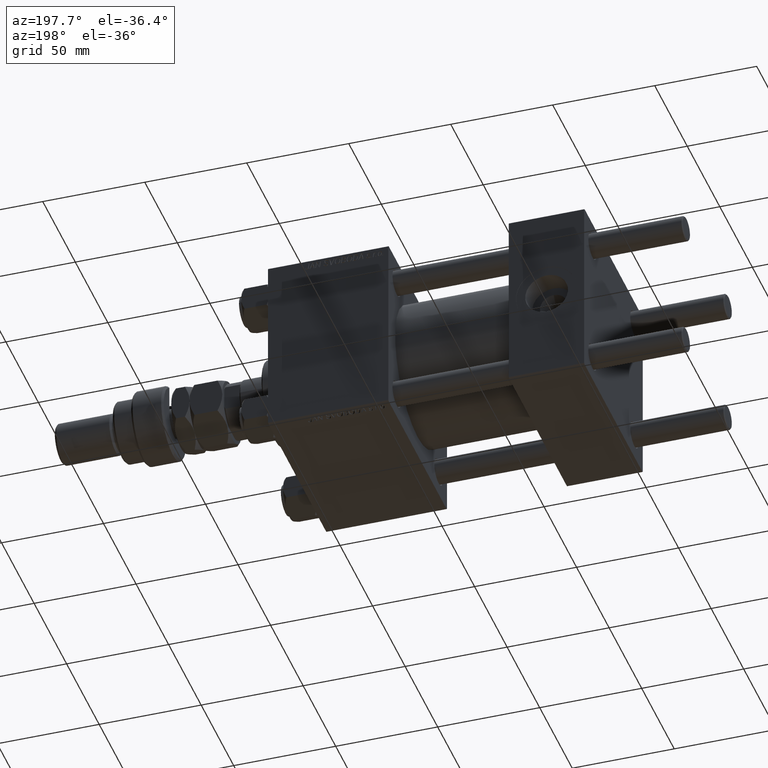
[diagram: clean part render]
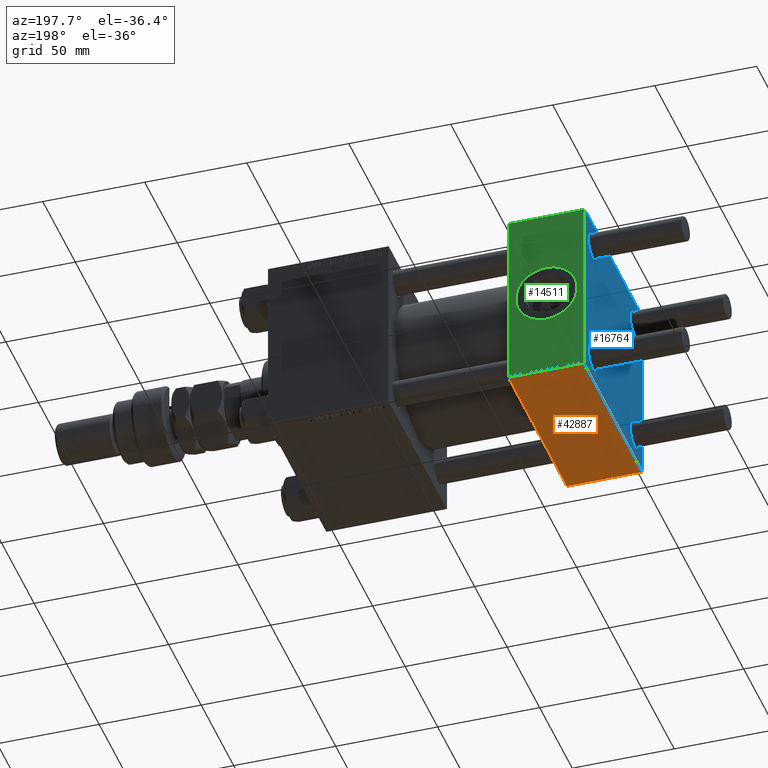
[diagram: same view with three faces highlighted in distinct colors, each labeled with its STEP entity id]
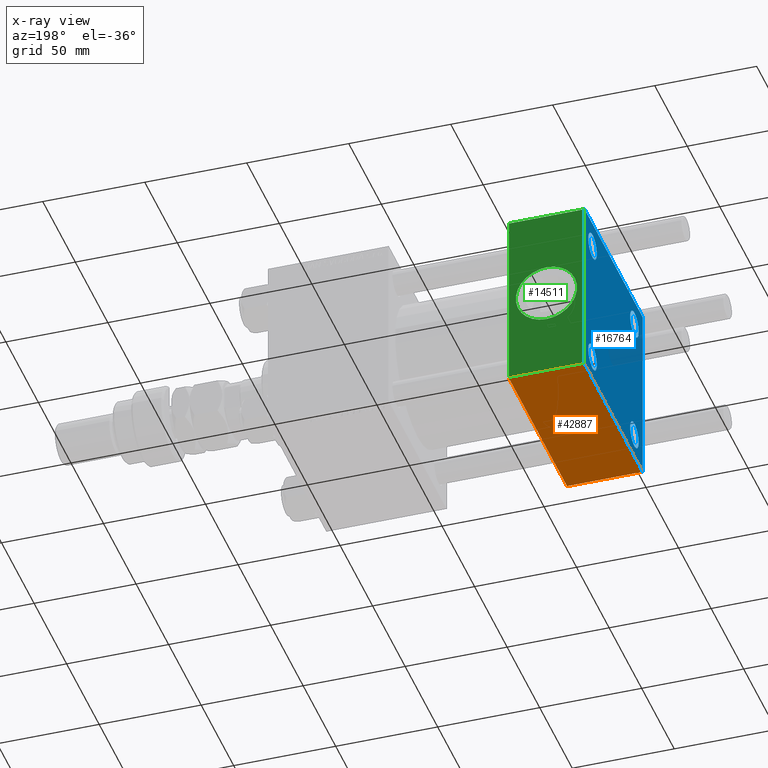
[diagram: x-ray of the same camera — body ghosted, the three highlighted faces saturated]
A machine part, auxiliary view with three faces highlighted in distinct colors.
The next image is the same camera in x-ray (body ghosted, the three faces saturated) — at least one of them is partly hidden behind the body in this view.
Their STEP definitions:

[orange] entity #42887 — the highlighted planar face has unit normal (0, 0, -1).
#60 = DIRECTION ( 'NONE',  ( -1.000000000000000000, 0.000000000000000000, 0.000000000000000000 ) ) ;
#432 = DIRECTION ( 'NONE',  ( 0.000000000000000000, -1.000000000000000000, -1.541976423090495633E-16 ) ) ;
#692 = CARTESIAN_POINT ( 'NONE',  ( 37.00000000000000000, 44.49999999999998579, -44.99999999999998579 ) ) ;
#957 = EDGE_CURVE ( 'NONE', #46983, #13670, #11612, .T. ) ;
#1034 = EDGE_CURVE ( 'NONE', #46983, #3476, #29655, .T. ) ;
#2750 = AXIS2_PLACEMENT_3D ( 'NONE', #14525, #30742, #43546 ) ;
#3476 = VERTEX_POINT ( 'NONE', #41551 ) ;
#3679 = EDGE_CURVE ( 'NONE', #13670, #22737, #17442, .T. ) ;
#7858 = ORIENTED_EDGE ( 'NONE', *, *, #3679, .T. ) ;
#11342 = PLANE ( 'NONE',  #2750 ) ;
#11612 = LINE ( 'NONE', #44095, #48450 ) ;
#12770 = VECTOR ( 'NONE', #21435, 1000.000000000000000 ) ;
#13670 = VERTEX_POINT ( 'NONE', #692 ) ;
#14525 = CARTESIAN_POINT ( 'NONE',  ( 37.00000000000000000, 44.99999999999998579, -44.99999999999998579 ) ) ;
#17442 = LINE ( 'NONE', #24904, #12770 ) ;
#17761 = VECTOR ( 'NONE', #432, 1000.000000000000000 ) ;
#21435 = DIRECTION ( 'NONE',  ( 0.000000000000000000, -1.000000000000000000, -1.541976423090495633E-16 ) ) ;
#21652 = EDGE_LOOP ( 'NONE', ( #40410, #36610, #7858, #31516 ) ) ;
#22737 = VERTEX_POINT ( 'NONE', #32770 ) ;
#24904 = CARTESIAN_POINT ( 'NONE',  ( 37.00000000000000000, 44.99999999999998579, -44.99999999999998579 ) ) ;
#27837 = DIRECTION ( 'NONE',  ( 1.000000000000000000, 0.000000000000000000, 0.000000000000000000 ) ) ;
#29655 = LINE ( 'NONE', #32605, #17761 ) ;
#30742 = DIRECTION ( 'NONE',  ( 0.000000000000000000, 1.541976423090495880E-16, -1.000000000000000000 ) ) ;
#31516 = ORIENTED_EDGE ( 'NONE', *, *, #47853, .T. ) ;
#32493 = CARTESIAN_POINT ( 'NONE',  ( 0.000000000000000000, -44.49999999999998579, -45.00000000000000000 ) ) ;
#32605 = CARTESIAN_POINT ( 'NONE',  ( 0.000000000000000000, 44.99999999999998579, -44.99999999999998579 ) ) ;
#32770 = CARTESIAN_POINT ( 'NONE',  ( 37.00000000000000000, -44.49999999999995737, -45.00000000000000000 ) ) ;
#34737 = FACE_OUTER_BOUND ( 'NONE', #21652, .T. ) ;
#35311 = CARTESIAN_POINT ( 'NONE',  ( 0.000000000000000000, 44.49999999999998579, -44.99999999999998579 ) ) ;
#36474 = LINE ( 'NONE', #32493, #47892 ) ;
#36610 = ORIENTED_EDGE ( 'NONE', *, *, #957, .T. ) ;
#40410 = ORIENTED_EDGE ( 'NONE', *, *, #1034, .F. ) ;
#41551 = CARTESIAN_POINT ( 'NONE',  ( 0.000000000000000000, -44.49999999999995737, -45.00000000000000000 ) ) ;
#42887 = ADVANCED_FACE ( 'NONE', ( #34737 ), #11342, .T. ) ;
#43546 = DIRECTION ( 'NONE',  ( 0.000000000000000000, 1.000000000000000000, 1.541976423090495880E-16 ) ) ;
#44095 = CARTESIAN_POINT ( 'NONE',  ( 37.00000000000000000, 44.49999999999998579, -44.99999999999998579 ) ) ;
#46983 = VERTEX_POINT ( 'NONE', #35311 ) ;
#47853 = EDGE_CURVE ( 'NONE', #22737, #3476, #36474, .T. ) ;
#47892 = VECTOR ( 'NONE', #60, 1000.000000000000000 ) ;
#48450 = VECTOR ( 'NONE', #27837, 1000.000000000000000 ) ;

[blue] entity #16764 — the highlighted planar face has unit normal (-1, 0, 0).
#432 = DIRECTION ( 'NONE',  ( 0.000000000000000000, -1.000000000000000000, -1.541976423090495633E-16 ) ) ;
#454 = PLANE ( 'NONE',  #17353 ) ;
#804 = AXIS2_PLACEMENT_3D ( 'NONE', #2454, #30896, #50644 ) ;
#825 = CARTESIAN_POINT ( 'NONE',  ( 0.000000000000000000, 32.14999999999999147, -38.64999999999998437 ) ) ;
#987 = EDGE_CURVE ( 'NONE', #47231, #26794, #3127, .T. ) ;
#1034 = EDGE_CURVE ( 'NONE', #46983, #3476, #29655, .T. ) ;
#1166 = VERTEX_POINT ( 'NONE', #22190 ) ;
#1425 = CARTESIAN_POINT ( 'NONE',  ( 0.000000000000000000, 32.14999999999999147, 25.65000000000002700 ) ) ;
#1485 = FACE_BOUND ( 'NONE', #13152, .T. ) ;
#1525 = DIRECTION ( 'NONE',  ( -0.000000000000000000, 0.7071067811865425767, 0.7071067811865524577 ) ) ;
#1583 = CARTESIAN_POINT ( 'NONE',  ( 0.000000000000000000, -44.74999999999998579, -44.74999999999998579 ) ) ;
#1832 = ORIENTED_EDGE ( 'NONE', *, *, #32820, .T. ) ;
#2284 = CARTESIAN_POINT ( 'NONE',  ( 0.000000000000000000, -45.00000000000000711, 44.49999999999997158 ) ) ;
#2454 = CARTESIAN_POINT ( 'NONE',  ( 0.000000000000000000, -32.14999999999997726, 32.15000000000001279 ) ) ;
#2475 = VERTEX_POINT ( 'NONE', #3407 ) ;
#2522 = AXIS2_PLACEMENT_3D ( 'NONE', #33769, #12511, #28733 ) ;
#2955 = VERTEX_POINT ( 'NONE', #1425 ) ;
#3127 = LINE ( 'NONE', #20107, #13517 ) ;
#3407 = CARTESIAN_POINT ( 'NONE',  ( 0.000000000000000000, 44.99999999999998579, 44.50000000000001421 ) ) ;
#3476 = VERTEX_POINT ( 'NONE', #41551 ) ;
#3661 = DIRECTION ( 'NONE',  ( 0.000000000000000000, 0.000000000000000000, 1.000000000000000000 ) ) ;
#3710 = ORIENTED_EDGE ( 'NONE', *, *, #38980, .T. ) ;
#3914 = CARTESIAN_POINT ( 'NONE',  ( 0.000000000000000000, 32.14999999999999147, -32.15000000000000568 ) ) ;
#4213 = CIRCLE ( 'NONE', #804, 6.500000000000019540 ) ;
#4431 = DIRECTION ( 'NONE',  ( -0.000000000000000000, 0.000000000000000000, 1.000000000000000000 ) ) ;
#5439 = EDGE_CURVE ( 'NONE', #38292, #43721, #51312, .T. ) ;
#5612 = VECTOR ( 'NONE', #21594, 1000.000000000000000 ) ;
#6107 = DIRECTION ( 'NONE',  ( 0.000000000000000000, 0.7071067811865474617, -0.7071067811865474617 ) ) ;
#6501 = CIRCLE ( 'NONE', #34506, 6.499999999999977796 ) ;
#6906 = CARTESIAN_POINT ( 'NONE',  ( 0.000000000000000000, 44.74999999999999289, 44.74999999999999289 ) ) ;
#7638 = DIRECTION ( 'NONE',  ( 1.000000000000000000, -0.000000000000000000, 0.000000000000000000 ) ) ;
#8020 = AXIS2_PLACEMENT_3D ( 'NONE', #3914, #7638, #3661 ) ;
#8643 = CARTESIAN_POINT ( 'NONE',  ( 0.000000000000000000, 32.14999999999999147, 32.15000000000000568 ) ) ;
#9438 = VECTOR ( 'NONE', #6107, 1000.000000000000114 ) ;
#10463 = DIRECTION ( 'NONE',  ( 1.000000000000000000, -0.000000000000000000, 0.000000000000000000 ) ) ;
#11298 = VERTEX_POINT ( 'NONE', #14794 ) ;
#11358 = CIRCLE ( 'NONE', #52185, 6.499999999999977796 ) ;
#11569 = CARTESIAN_POINT ( 'NONE',  ( 0.000000000000000000, -32.14999999999997726, -32.15000000000001279 ) ) ;
#11620 = VERTEX_POINT ( 'NONE', #22704 ) ;
#12511 = DIRECTION ( 'NONE',  ( 1.000000000000000000, -0.000000000000000000, 0.000000000000000000 ) ) ;
#12537 = ORIENTED_EDGE ( 'NONE', *, *, #40918, .T. ) ;
#12664 = DIRECTION ( 'NONE',  ( -1.000000000000000000, 0.000000000000000000, -0.000000000000000000 ) ) ;
#12775 = CARTESIAN_POINT ( 'NONE',  ( -0.000000000000000000, -44.75000000000029843, 44.74999999999967315 ) ) ;
#13152 = EDGE_LOOP ( 'NONE', ( #38247, #1832 ) ) ;
#13517 = VECTOR ( 'NONE', #32341, 1000.000000000000000 ) ;
#14039 = LINE ( 'NONE', #45737, #39709 ) ;
#14708 = DIRECTION ( 'NONE',  ( 0.000000000000000000, 0.000000000000000000, 1.000000000000000000 ) ) ;
#14794 = CARTESIAN_POINT ( 'NONE',  ( 0.000000000000000000, -32.14999999999997726, 25.64999999999999147 ) ) ;
#15015 = DIRECTION ( 'NONE',  ( 0.000000000000000000, 0.000000000000000000, 1.000000000000000000 ) ) ;
#16036 = EDGE_CURVE ( 'NONE', #32893, #52341, #21600, .T. ) ;
#16542 = CARTESIAN_POINT ( 'NONE',  ( 0.000000000000000000, -32.14999999999997726, 38.65000000000003411 ) ) ;
#16640 = EDGE_CURVE ( 'NONE', #42754, #40750, #28412, .T. ) ;
#16662 = VECTOR ( 'NONE', #1525, 1000.000000000000114 ) ;
#16764 = ADVANCED_FACE ( 'NONE', ( #1485, #41680, #17181, #29416, #41423 ), #454, .T. ) ;
#17181 = FACE_BOUND ( 'NONE', #43814, .T. ) ;
#17353 = AXIS2_PLACEMENT_3D ( 'NONE', #21429, #12664, #4431 ) ;
#17504 = DIRECTION ( 'NONE',  ( -0.000000000000000000, -0.7071067811865474617, -0.7071067811865474617 ) ) ;
#17761 = VECTOR ( 'NONE', #432, 1000.000000000000000 ) ;
#17785 = DIRECTION ( 'NONE',  ( 0.000000000000000000, -0.7071067811865474617, 0.7071067811865474617 ) ) ;
#18488 = VERTEX_POINT ( 'NONE', #16542 ) ;
#18866 = ORIENTED_EDGE ( 'NONE', *, *, #1034, .T. ) ;
#19424 = CIRCLE ( 'NONE', #30456, 6.499999999999977796 ) ;
#20063 = CARTESIAN_POINT ( 'NONE',  ( 0.000000000000000000, -32.14999999999997726, -32.15000000000001279 ) ) ;
#20107 = CARTESIAN_POINT ( 'NONE',  ( 0.000000000000000000, -45.00000000000000711, 45.00000000000000000 ) ) ;
#20117 = CARTESIAN_POINT ( 'NONE',  ( 0.000000000000000000, -32.14999999999997726, -25.65000000000003411 ) ) ;
#20303 = EDGE_LOOP ( 'NONE', ( #29440, #34013 ) ) ;
#20612 = EDGE_CURVE ( 'NONE', #2475, #1166, #38890, .T. ) ;
#21429 = CARTESIAN_POINT ( 'NONE',  ( 0.000000000000000000, 0.000000000000000000, 0.000000000000000000 ) ) ;
#21594 = DIRECTION ( 'NONE',  ( 0.000000000000000000, 0.000000000000000000, -1.000000000000000000 ) ) ;
#21600 = CIRCLE ( 'NONE', #34318, 6.499999999999977796 ) ;
#22190 = CARTESIAN_POINT ( 'NONE',  ( 0.000000000000000000, 44.99999999999998579, -44.49999999999995737 ) ) ;
#22704 = CARTESIAN_POINT ( 'NONE',  ( 0.000000000000000000, 32.14999999999999147, 38.64999999999999147 ) ) ;
#22946 = CARTESIAN_POINT ( 'NONE',  ( 0.000000000000000000, 32.14999999999999147, -32.15000000000000568 ) ) ;
#23715 = EDGE_CURVE ( 'NONE', #2955, #11620, #19424, .T. ) ;
#23845 = ORIENTED_EDGE ( 'NONE', *, *, #20612, .T. ) ;
#23899 = EDGE_LOOP ( 'NONE', ( #24386, #47338 ) ) ;
#24064 = ORIENTED_EDGE ( 'NONE', *, *, #27647, .T. ) ;
#24386 = ORIENTED_EDGE ( 'NONE', *, *, #35113, .T. ) ;
#26044 = EDGE_CURVE ( 'NONE', #11620, #2955, #6501, .T. ) ;
#26210 = EDGE_CURVE ( 'NONE', #47231, #43721, #49267, .T. ) ;
#26247 = DIRECTION ( 'NONE',  ( 0.000000000000000000, -1.000000000000000000, -1.541976423090495387E-16 ) ) ;
#26794 = VERTEX_POINT ( 'NONE', #43678 ) ;
#27647 = EDGE_CURVE ( 'NONE', #1166, #46983, #14039, .T. ) ;
#27961 = CARTESIAN_POINT ( 'NONE',  ( 0.000000000000000000, 32.14999999999999147, 32.15000000000000568 ) ) ;
#28412 = CIRCLE ( 'NONE', #8020, 6.499999999999977796 ) ;
#28733 = DIRECTION ( 'NONE',  ( 0.000000000000000000, 0.000000000000000000, 1.000000000000000000 ) ) ;
#28839 = CARTESIAN_POINT ( 'NONE',  ( 0.000000000000000000, -44.49999999999995737, 45.00000000000000000 ) ) ;
#29381 = CARTESIAN_POINT ( 'NONE',  ( 0.000000000000000000, 44.49999999999998579, 45.00000000000001421 ) ) ;
#29416 = FACE_BOUND ( 'NONE', #20303, .T. ) ;
#29440 = ORIENTED_EDGE ( 'NONE', *, *, #26044, .T. ) ;
#29529 = CARTESIAN_POINT ( 'NONE',  ( 0.000000000000000000, -32.14999999999997726, -38.64999999999999147 ) ) ;
#29655 = LINE ( 'NONE', #32605, #17761 ) ;
#30042 = LINE ( 'NONE', #1583, #35728 ) ;
#30269 = ORIENTED_EDGE ( 'NONE', *, *, #987, .F. ) ;
#30359 = CARTESIAN_POINT ( 'NONE',  ( 0.000000000000000000, 44.99999999999998579, 45.00000000000001421 ) ) ;
#30456 = AXIS2_PLACEMENT_3D ( 'NONE', #8643, #41908, #41134 ) ;
#30839 = LINE ( 'NONE', #6906, #9438 ) ;
#30896 = DIRECTION ( 'NONE',  ( 1.000000000000000000, -0.000000000000000000, 0.000000000000000000 ) ) ;
#32341 = DIRECTION ( 'NONE',  ( 0.000000000000000000, 7.709882115452476934E-17, -1.000000000000000000 ) ) ;
#32605 = CARTESIAN_POINT ( 'NONE',  ( 0.000000000000000000, 44.99999999999998579, -44.99999999999998579 ) ) ;
#32820 = EDGE_CURVE ( 'NONE', #11298, #18488, #33920, .T. ) ;
#32893 = VERTEX_POINT ( 'NONE', #29529 ) ;
#33769 = CARTESIAN_POINT ( 'NONE',  ( 0.000000000000000000, -32.14999999999997726, 32.15000000000001279 ) ) ;
#33920 = CIRCLE ( 'NONE', #2522, 6.500000000000019540 ) ;
#34013 = ORIENTED_EDGE ( 'NONE', *, *, #23715, .T. ) ;
#34318 = AXIS2_PLACEMENT_3D ( 'NONE', #20063, #36033, #15015 ) ;
#34506 = AXIS2_PLACEMENT_3D ( 'NONE', #27961, #43703, #43423 ) ;
#34779 = ORIENTED_EDGE ( 'NONE', *, *, #49606, .T. ) ;
#35113 = EDGE_CURVE ( 'NONE', #52341, #32893, #45810, .T. ) ;
#35311 = CARTESIAN_POINT ( 'NONE',  ( 0.000000000000000000, 44.49999999999998579, -44.99999999999998579 ) ) ;
#35728 = VECTOR ( 'NONE', #17785, 1000.000000000000114 ) ;
#36033 = DIRECTION ( 'NONE',  ( 1.000000000000000000, -0.000000000000000000, 0.000000000000000000 ) ) ;
#36225 = EDGE_CURVE ( 'NONE', #18488, #11298, #4213, .T. ) ;
#38247 = ORIENTED_EDGE ( 'NONE', *, *, #36225, .T. ) ;
#38292 = VERTEX_POINT ( 'NONE', #29381 ) ;
#38890 = LINE ( 'NONE', #30359, #5612 ) ;
#38980 = EDGE_CURVE ( 'NONE', #3476, #26794, #30042, .T. ) ;
#39709 = VECTOR ( 'NONE', #17504, 1000.000000000000114 ) ;
#40750 = VERTEX_POINT ( 'NONE', #825 ) ;
#40918 = EDGE_CURVE ( 'NONE', #38292, #2475, #30839, .T. ) ;
#41134 = DIRECTION ( 'NONE',  ( 0.000000000000000000, 0.000000000000000000, 1.000000000000000000 ) ) ;
#41423 = FACE_OUTER_BOUND ( 'NONE', #43988, .T. ) ;
#41551 = CARTESIAN_POINT ( 'NONE',  ( 0.000000000000000000, -44.49999999999995737, -45.00000000000000000 ) ) ;
#41680 = FACE_BOUND ( 'NONE', #23899, .T. ) ;
#41908 = DIRECTION ( 'NONE',  ( 1.000000000000000000, -0.000000000000000000, 0.000000000000000000 ) ) ;
#42221 = CARTESIAN_POINT ( 'NONE',  ( 0.000000000000000000, 32.14999999999999147, -25.65000000000002700 ) ) ;
#42604 = VECTOR ( 'NONE', #26247, 1000.000000000000000 ) ;
#42754 = VERTEX_POINT ( 'NONE', #42221 ) ;
#43423 = DIRECTION ( 'NONE',  ( 0.000000000000000000, 0.000000000000000000, 1.000000000000000000 ) ) ;
#43678 = CARTESIAN_POINT ( 'NONE',  ( 0.000000000000000000, -45.00000000000000000, -44.49999999999995737 ) ) ;
#43703 = DIRECTION ( 'NONE',  ( 1.000000000000000000, -0.000000000000000000, 0.000000000000000000 ) ) ;
#43721 = VERTEX_POINT ( 'NONE', #28839 ) ;
#43814 = EDGE_LOOP ( 'NONE', ( #52197, #34779 ) ) ;
#43988 = EDGE_LOOP ( 'NONE', ( #23845, #24064, #18866, #3710, #30269, #46396, #50855, #12537 ) ) ;
#45737 = CARTESIAN_POINT ( 'NONE',  ( 0.000000000000000000, 44.74999999999998579, -44.74999999999998579 ) ) ;
#45810 = CIRCLE ( 'NONE', #50918, 6.499999999999977796 ) ;
#46396 = ORIENTED_EDGE ( 'NONE', *, *, #26210, .T. ) ;
#46523 = CARTESIAN_POINT ( 'NONE',  ( 0.000000000000000000, 44.99999999999998579, 45.00000000000001421 ) ) ;
#46983 = VERTEX_POINT ( 'NONE', #35311 ) ;
#47231 = VERTEX_POINT ( 'NONE', #2284 ) ;
#47338 = ORIENTED_EDGE ( 'NONE', *, *, #16036, .T. ) ;
#47805 = DIRECTION ( 'NONE',  ( 0.000000000000000000, 0.000000000000000000, 1.000000000000000000 ) ) ;
#48314 = DIRECTION ( 'NONE',  ( 1.000000000000000000, -0.000000000000000000, 0.000000000000000000 ) ) ;
#49267 = LINE ( 'NONE', #12775, #16662 ) ;
#49606 = EDGE_CURVE ( 'NONE', #40750, #42754, #11358, .T. ) ;
#50644 = DIRECTION ( 'NONE',  ( 0.000000000000000000, 0.000000000000000000, 1.000000000000000000 ) ) ;
#50855 = ORIENTED_EDGE ( 'NONE', *, *, #5439, .F. ) ;
#50918 = AXIS2_PLACEMENT_3D ( 'NONE', #11569, #48314, #47805 ) ;
#51312 = LINE ( 'NONE', #46523, #42604 ) ;
#52185 = AXIS2_PLACEMENT_3D ( 'NONE', #22946, #10463, #14708 ) ;
#52197 = ORIENTED_EDGE ( 'NONE', *, *, #16640, .T. ) ;
#52341 = VERTEX_POINT ( 'NONE', #20117 ) ;

[green] entity #14511 — the highlighted planar face has unit normal (0, 1, 0).
#126 = DIRECTION ( 'NONE',  ( 0.000000000000000000, 0.000000000000000000, -1.000000000000000000 ) ) ;
#316 = ORIENTED_EDGE ( 'NONE', *, *, #20612, .F. ) ;
#712 = CARTESIAN_POINT ( 'NONE',  ( 18.50000000000000000, 44.99999999999998579, 0.000000000000000000 ) ) ;
#783 = EDGE_LOOP ( 'NONE', ( #52133, #29028 ) ) ;
#1058 = ORIENTED_EDGE ( 'NONE', *, *, #51977, .T. ) ;
#1166 = VERTEX_POINT ( 'NONE', #22190 ) ;
#1226 = PLANE ( 'NONE',  #41949 ) ;
#2475 = VERTEX_POINT ( 'NONE', #3407 ) ;
#2623 = CARTESIAN_POINT ( 'NONE',  ( 37.00000000000000000, 44.99999999999998579, 44.50000000000001421 ) ) ;
#2904 = EDGE_CURVE ( 'NONE', #44315, #16945, #44572, .T. ) ;
#3407 = CARTESIAN_POINT ( 'NONE',  ( 0.000000000000000000, 44.99999999999998579, 44.50000000000001421 ) ) ;
#4479 = CIRCLE ( 'NONE', #43579, 15.00000000000000178 ) ;
#5612 = VECTOR ( 'NONE', #21594, 1000.000000000000000 ) ;
#6165 = CARTESIAN_POINT ( 'NONE',  ( 18.50000000000000355, 44.99999999999998579, -15.00000000000000178 ) ) ;
#7098 = EDGE_CURVE ( 'NONE', #2475, #44315, #39056, .T. ) ;
#8096 = CARTESIAN_POINT ( 'NONE',  ( 37.00000000000000000, 44.99999999999998579, 45.00000000000001421 ) ) ;
#8186 = CARTESIAN_POINT ( 'NONE',  ( 37.00000000000000000, 44.99999999999998579, 44.50000000000001421 ) ) ;
#9179 = DIRECTION ( 'NONE',  ( 0.000000000000000000, -0.000000000000000000, 1.000000000000000000 ) ) ;
#10245 = ORIENTED_EDGE ( 'NONE', *, *, #2904, .T. ) ;
#11635 = DIRECTION ( 'NONE',  ( 1.000000000000000000, 0.000000000000000000, 0.000000000000000000 ) ) ;
#13693 = FACE_BOUND ( 'NONE', #783, .T. ) ;
#14511 = ADVANCED_FACE ( 'NONE', ( #13693, #49144 ), #1226, .T. ) ;
#16792 = EDGE_CURVE ( 'NONE', #46965, #51661, #42025, .T. ) ;
#16945 = VERTEX_POINT ( 'NONE', #43520 ) ;
#17955 = VECTOR ( 'NONE', #11635, 1000.000000000000000 ) ;
#20612 = EDGE_CURVE ( 'NONE', #2475, #1166, #38890, .T. ) ;
#21594 = DIRECTION ( 'NONE',  ( 0.000000000000000000, 0.000000000000000000, -1.000000000000000000 ) ) ;
#21685 = DIRECTION ( 'NONE',  ( 0.000000000000000000, 1.000000000000000000, 0.000000000000000000 ) ) ;
#22190 = CARTESIAN_POINT ( 'NONE',  ( 0.000000000000000000, 44.99999999999998579, -44.49999999999995737 ) ) ;
#23212 = DIRECTION ( 'NONE',  ( 0.000000000000000000, 0.000000000000000000, 1.000000000000000000 ) ) ;
#24948 = LINE ( 'NONE', #43707, #32358 ) ;
#26142 = CARTESIAN_POINT ( 'NONE',  ( 18.50000000000000000, 44.99999999999998579, 0.000000000000000000 ) ) ;
#28584 = EDGE_LOOP ( 'NONE', ( #10245, #1058, #316, #45671 ) ) ;
#29028 = ORIENTED_EDGE ( 'NONE', *, *, #43877, .F. ) ;
#30359 = CARTESIAN_POINT ( 'NONE',  ( 0.000000000000000000, 44.99999999999998579, 45.00000000000001421 ) ) ;
#32358 = VECTOR ( 'NONE', #39967, 1000.000000000000000 ) ;
#35213 = AXIS2_PLACEMENT_3D ( 'NONE', #712, #21685, #44886 ) ;
#38890 = LINE ( 'NONE', #30359, #5612 ) ;
#39056 = LINE ( 'NONE', #2623, #17955 ) ;
#39967 = DIRECTION ( 'NONE',  ( -1.000000000000000000, 0.000000000000000000, 0.000000000000000000 ) ) ;
#41409 = DIRECTION ( 'NONE',  ( -0.000000000000000000, 1.000000000000000000, 0.000000000000000000 ) ) ;
#41949 = AXIS2_PLACEMENT_3D ( 'NONE', #45135, #41409, #9179 ) ;
#42025 = CIRCLE ( 'NONE', #35213, 15.00000000000000178 ) ;
#43520 = CARTESIAN_POINT ( 'NONE',  ( 37.00000000000000000, 44.99999999999998579, -44.49999999999995737 ) ) ;
#43579 = AXIS2_PLACEMENT_3D ( 'NONE', #26142, #50939, #23212 ) ;
#43707 = CARTESIAN_POINT ( 'NONE',  ( 37.00000000000000000, 44.99999999999998579, -44.49999999999998579 ) ) ;
#43877 = EDGE_CURVE ( 'NONE', #51661, #46965, #4479, .T. ) ;
#44315 = VERTEX_POINT ( 'NONE', #8186 ) ;
#44572 = LINE ( 'NONE', #8096, #46761 ) ;
#44886 = DIRECTION ( 'NONE',  ( 0.000000000000000000, 0.000000000000000000, 1.000000000000000000 ) ) ;
#45135 = CARTESIAN_POINT ( 'NONE',  ( 37.00000000000000000, 44.99999999999998579, 45.00000000000001421 ) ) ;
#45671 = ORIENTED_EDGE ( 'NONE', *, *, #7098, .T. ) ;
#46590 = CARTESIAN_POINT ( 'NONE',  ( 18.50000000000000000, 44.99999999999998579, 15.00000000000000178 ) ) ;
#46761 = VECTOR ( 'NONE', #126, 1000.000000000000000 ) ;
#46965 = VERTEX_POINT ( 'NONE', #46590 ) ;
#49144 = FACE_OUTER_BOUND ( 'NONE', #28584, .T. ) ;
#50939 = DIRECTION ( 'NONE',  ( 0.000000000000000000, 1.000000000000000000, 0.000000000000000000 ) ) ;
#51661 = VERTEX_POINT ( 'NONE', #6165 ) ;
#51977 = EDGE_CURVE ( 'NONE', #16945, #1166, #24948, .T. ) ;
#52133 = ORIENTED_EDGE ( 'NONE', *, *, #16792, .F. ) ;